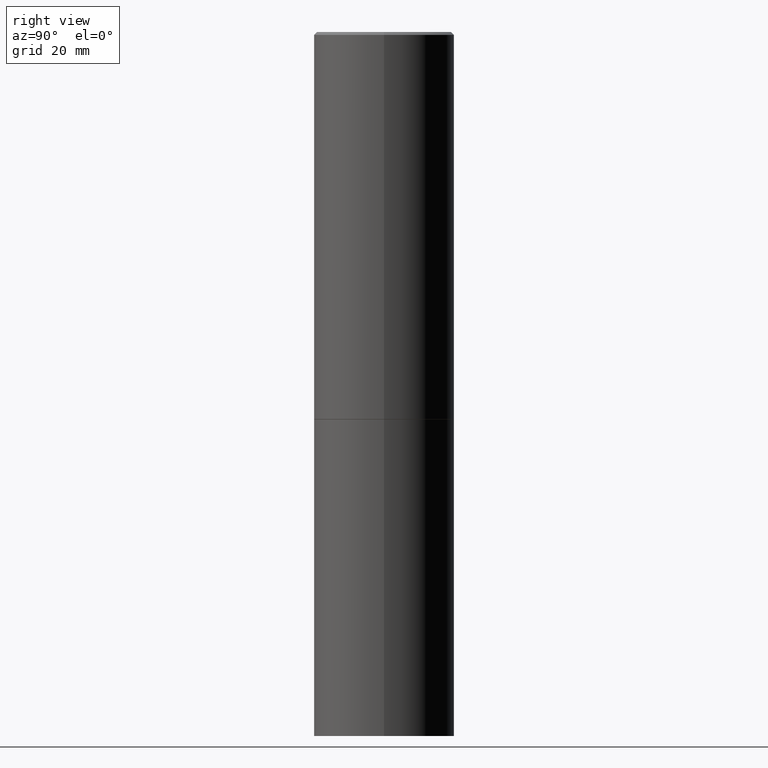
[diagram: clean part render]
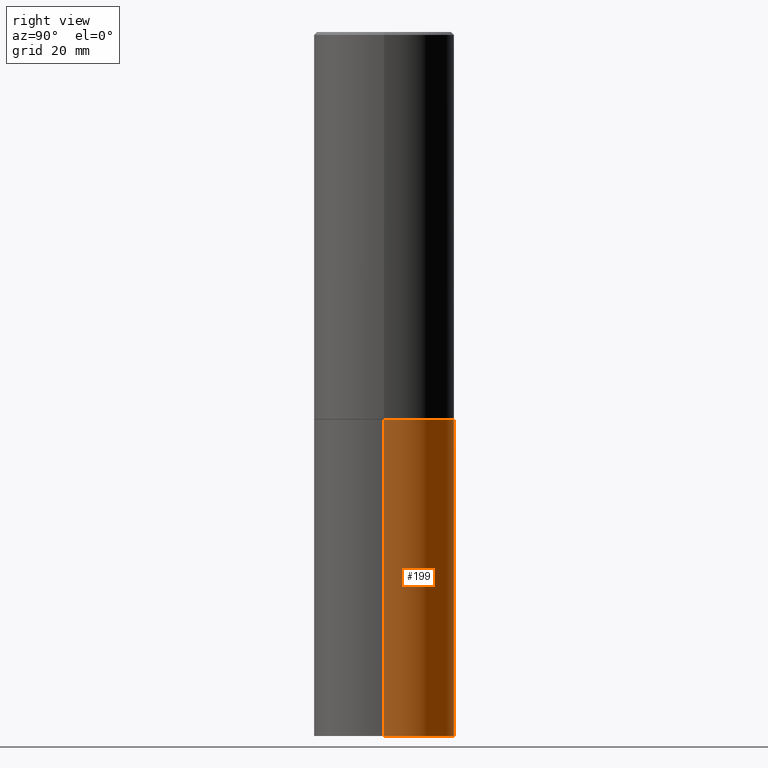
[diagram: same view with one face highlighted and labeled with its STEP entity id]
A machine part, right view. The second image highlights one B-rep face of the part: STEP entity #199.
In plain terms, the highlighted cylindrical surface (partial cylindrical patch) has radius 12.7 mm, axis along (-0, 0, 1).
Its self-contained STEP definition (entity closure, byte-faithful):
#5 = LINE ( 'NONE', #349, #232 ) ;
#14 = DIRECTION ( 'NONE',  ( -2.445468806185136597E-29, 3.491481338843145583E-15, 1.000000000000000000 ) ) ;
#16 = CARTESIAN_POINT ( 'NONE',  ( -0.5000000000000000000, -9.976776509216688154E-15, -2.750000000000000000 ) ) ;
#34 = CIRCLE ( 'NONE', #239, 0.5000000000000000000 ) ;
#61 = DIRECTION ( 'NONE',  ( -2.445468806185136877E-29, 3.491481338843145188E-15, 1.000000000000000000 ) ) ;
#71 = VERTEX_POINT ( 'NONE', #198 ) ;
#82 = ORIENTED_EDGE ( 'NONE', *, *, #263, .T. ) ;
#83 = AXIS2_PLACEMENT_3D ( 'NONE', #149, #270, #118 ) ;
#85 = LINE ( 'NONE', #208, #327 ) ;
#93 = AXIS2_PLACEMENT_3D ( 'NONE', #278, #14, #299 ) ;
#104 = VERTEX_POINT ( 'NONE', #244 ) ;
#118 = DIRECTION ( 'NONE',  ( 1.000000000000000000, -6.982962677686266711E-15, 4.876176775795935793E-29 ) ) ;
#128 = EDGE_LOOP ( 'NONE', ( #82, #185, #306, #338 ) ) ;
#131 = CIRCLE ( 'NONE', #93, 0.5000000000000000000 ) ;
#132 = DIRECTION ( 'NONE',  ( -2.445468806185136597E-29, 3.491481338843145583E-15, 1.000000000000000000 ) ) ;
#149 = CARTESIAN_POINT ( 'NONE',  ( 0.000000000000000000, 0.000000000000000000, 0.000000000000000000 ) ) ;
#160 = CARTESIAN_POINT ( 'NONE',  ( 0.5000000000000000000, -1.309305502066178321E-14, -2.750000000000000000 ) ) ;
#169 = EDGE_CURVE ( 'NONE', #104, #251, #5, .T. ) ;
#181 = FACE_OUTER_BOUND ( 'NONE', #128, .T. ) ;
#185 = ORIENTED_EDGE ( 'NONE', *, *, #205, .T. ) ;
#190 = DIRECTION ( 'NONE',  ( 1.000000000000000000, -6.982962677686266711E-15, 0.000000000000000000 ) ) ;
#198 = CARTESIAN_POINT ( 'NONE',  ( -0.5000000000000000000, -9.976776509216688154E-15, -5.000000000000000000 ) ) ;
#199 = ADVANCED_FACE ( 'NONE', ( #181 ), #297, .T. ) ;
#205 = EDGE_CURVE ( 'NONE', #71, #301, #85, .T. ) ;
#208 = CARTESIAN_POINT ( 'NONE',  ( -0.5000000000000000000, 3.552713678800500929E-15, -2.459467545127452891E-29 ) ) ;
#232 = VECTOR ( 'NONE', #240, 39.37007874015748143 ) ;
#239 = AXIS2_PLACEMENT_3D ( 'NONE', #330, #132, #190 ) ;
#240 = DIRECTION ( 'NONE',  ( -2.445468806185136877E-29, 3.491481338843145188E-15, 1.000000000000000000 ) ) ;
#244 = CARTESIAN_POINT ( 'NONE',  ( 0.5000000000000000000, -2.094888803305886324E-14, -5.000000000000000000 ) ) ;
#251 = VERTEX_POINT ( 'NONE', #160 ) ;
#258 = EDGE_CURVE ( 'NONE', #251, #301, #34, .T. ) ;
#263 = EDGE_CURVE ( 'NONE', #104, #71, #131, .T. ) ;
#270 = DIRECTION ( 'NONE',  ( -2.445468806185136597E-29, 3.491481338843145583E-15, 1.000000000000000000 ) ) ;
#278 = CARTESIAN_POINT ( 'NONE',  ( 1.222734403092568523E-28, -1.745740669421572989E-14, -5.000000000000000000 ) ) ;
#297 = CYLINDRICAL_SURFACE ( 'NONE', #83, 0.5000000000000000000 ) ;
#299 = DIRECTION ( 'NONE',  ( 1.000000000000000000, -6.982962677686266711E-15, 0.000000000000000000 ) ) ;
#301 = VERTEX_POINT ( 'NONE', #16 ) ;
#306 = ORIENTED_EDGE ( 'NONE', *, *, #258, .F. ) ;
#327 = VECTOR ( 'NONE', #61, 39.37007874015748143 ) ;
#330 = CARTESIAN_POINT ( 'NONE',  ( 6.725039217009124520E-29, -9.601573681818649859E-15, -2.750000000000000000 ) ) ;
#338 = ORIENTED_EDGE ( 'NONE', *, *, #169, .F. ) ;
#349 = CARTESIAN_POINT ( 'NONE',  ( 0.5000000000000000000, -3.491481338843133355E-15, 2.438088387897967896E-29 ) ) ;